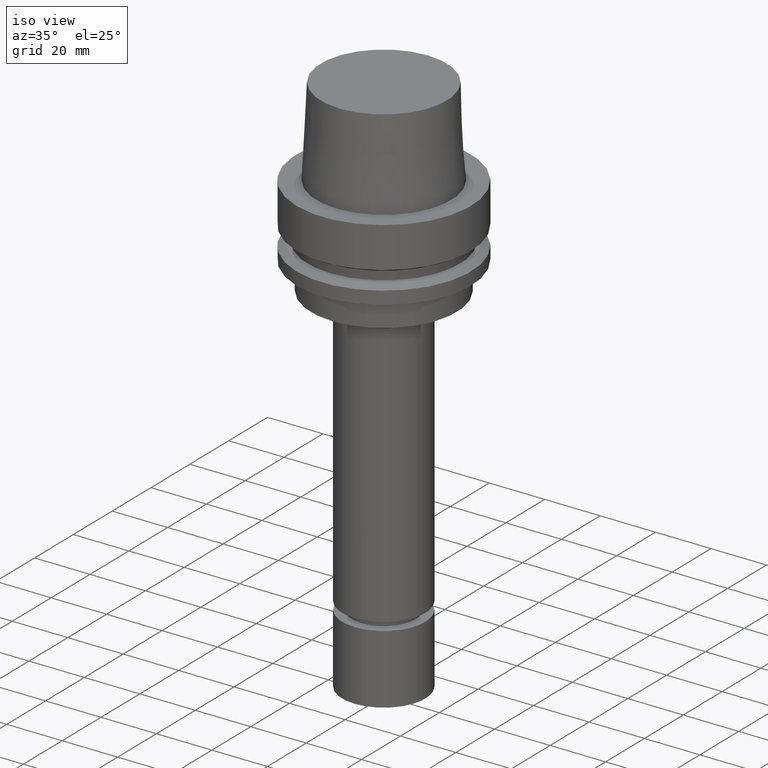
[diagram: clean part render]
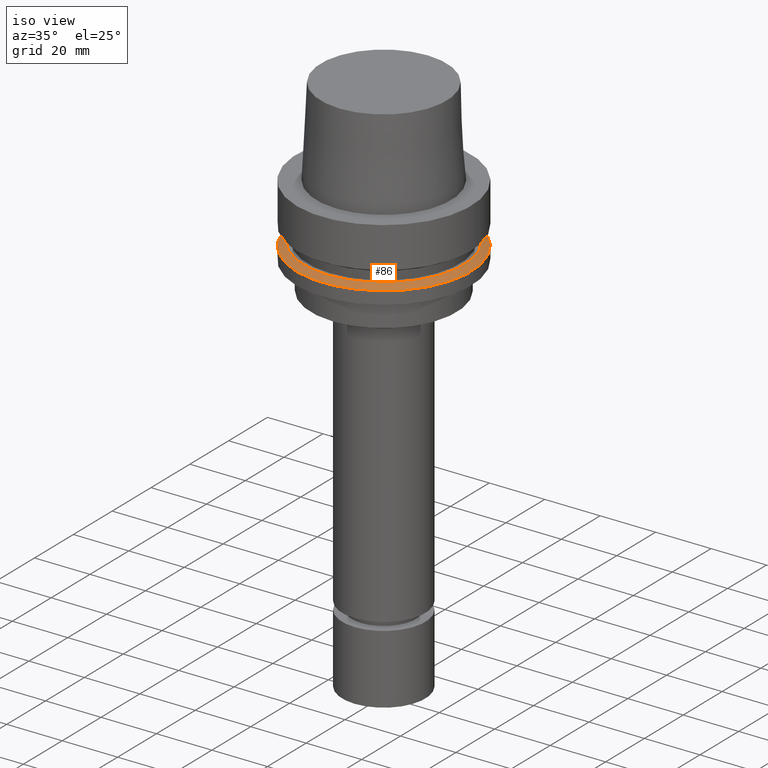
[diagram: same view with one face highlighted and labeled with its STEP entity id]
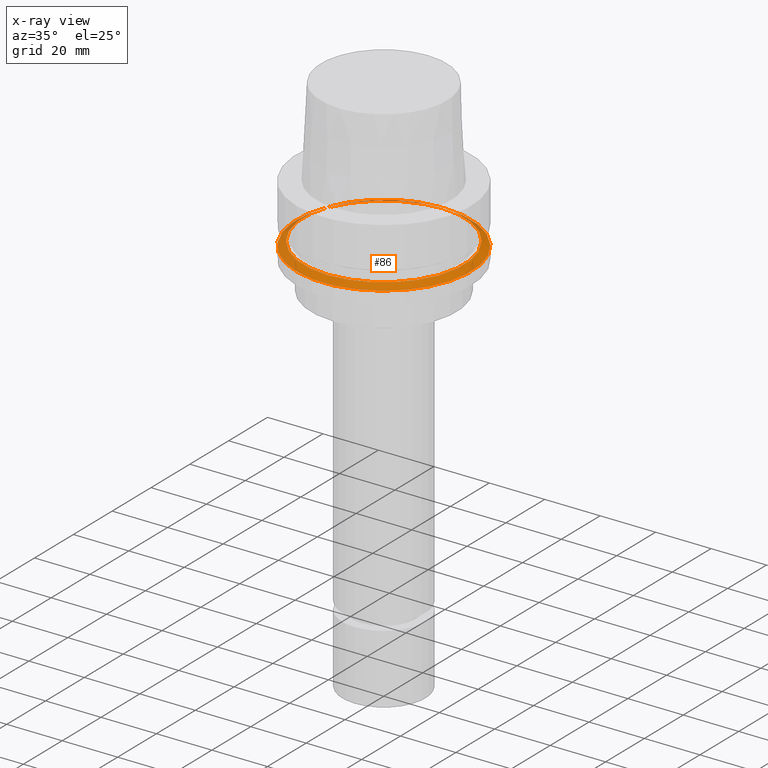
[diagram: x-ray of the same camera — body ghosted, the highlighted face saturated]
A machine part, iso view. The second image highlights one B-rep face of the part: STEP entity #86.
The next image is the same camera in x-ray: the body ghosted, the highlighted face saturated — about 9% of this face is hidden behind the body in this view.
In plain terms, the highlighted conical surface has half-angle 60 deg.
Its self-contained STEP definition (entity closure, byte-faithful):
#86=ADVANCED_FACE('Unnamed[1]',(#226,#227),#228,.T.);
#137=EDGE_CURVE('Unnamed[1]',#306,#306,#307,.T.);
#157=EDGE_CURVE('Unnamed[1]',#338,#338,#339,.T.);
#226=FACE_BOUND('',#420,.T.);
#227=FACE_BOUND('',#421,.T.);
#228=CONICAL_SURFACE('',#422,30.1987976320959,1.04719755119657);
#306=VERTEX_POINT('',#519);
#307=CIRCLE('',#520,31.5);
#338=VERTEX_POINT('',#559);
#339=CIRCLE('',#560,28.8975952641919);
#420=EDGE_LOOP('',(#643));
#421=EDGE_LOOP('',(#644));
#422=AXIS2_PLACEMENT_3D('',#645,#646,#647);
#519=CARTESIAN_POINT('',(1.30899429078397E-015,31.5,-21.3774990747592));
#520=AXIS2_PLACEMENT_3D('',#732,#733,#734);
#559=CARTESIAN_POINT('',(1.21699275665268E-015,28.8975952641919,-19.875));
#560=AXIS2_PLACEMENT_3D('',#768,#769,#770);
#643=ORIENTED_EDGE('',*,*,#157,.F.);
#644=ORIENTED_EDGE('',*,*,#137,.T.);
#645=CARTESIAN_POINT('',(1.26299352371833E-015,2.52598704743665E-015,-20.6262495373796));
#646=DIRECTION('',(6.12323399573677E-017,1.22464679914735E-016,-1.0));
#647=DIRECTION('',(-1.23259516440783E-032,1.0,1.22464679914735E-016));
#732=CARTESIAN_POINT('',(1.30899429078397E-015,2.61798858156794E-015,-21.3774990747592));
#733=DIRECTION('',(-6.12323399573677E-017,-1.22464679914735E-016,1.0));
#734=DIRECTION('',(-1.23259516440783E-032,1.0,1.22464679914735E-016));
#768=CARTESIAN_POINT('',(1.21699275665268E-015,2.43398551330536E-015,-19.875));
#769=DIRECTION('',(-6.12323399573677E-017,-1.22464679914735E-016,1.0));
#770=DIRECTION('',(-1.23259516440783E-032,1.0,1.22464679914735E-016));